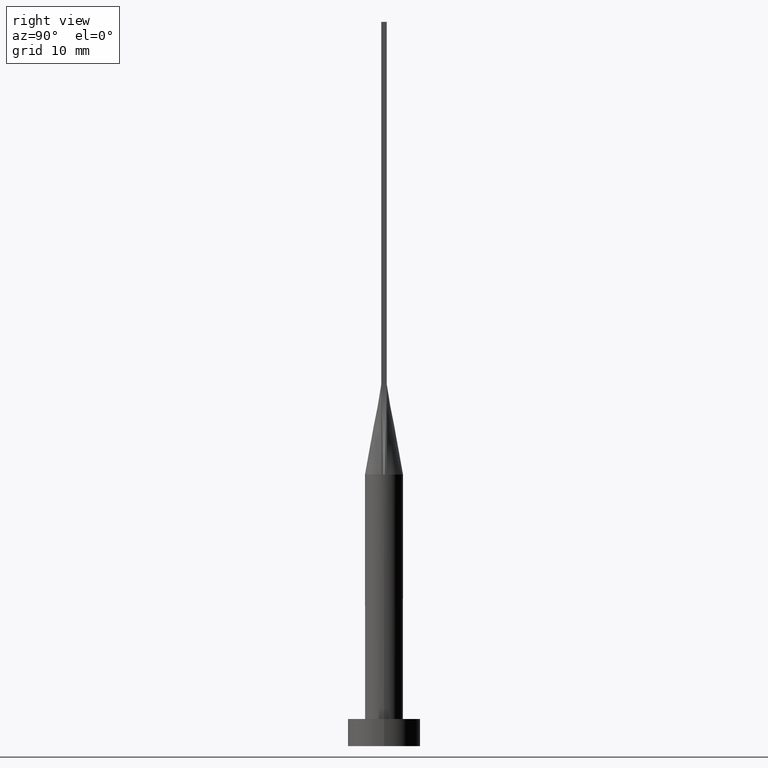
[diagram: clean part render]
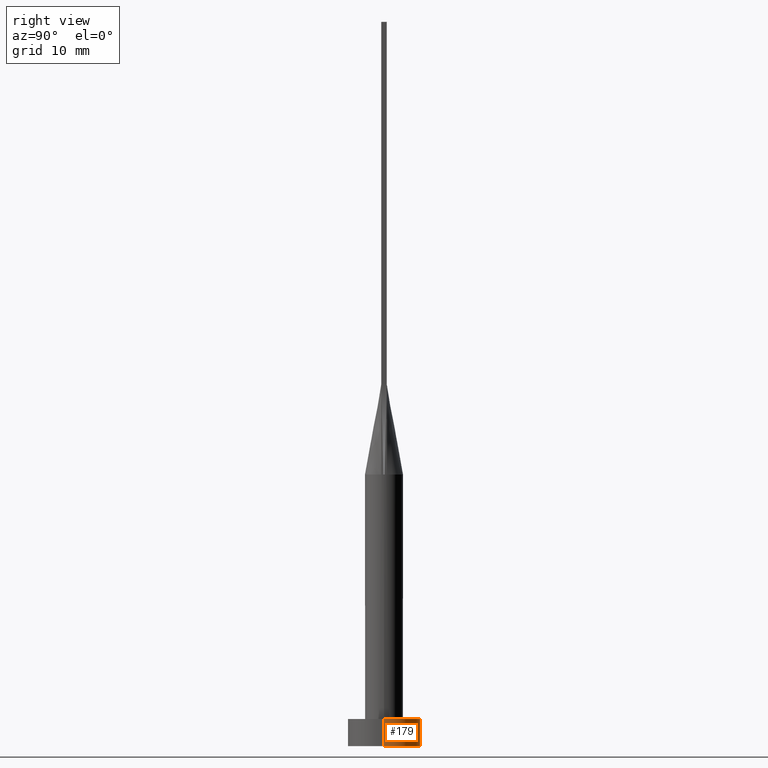
[diagram: same view with one face highlighted and labeled with its STEP entity id]
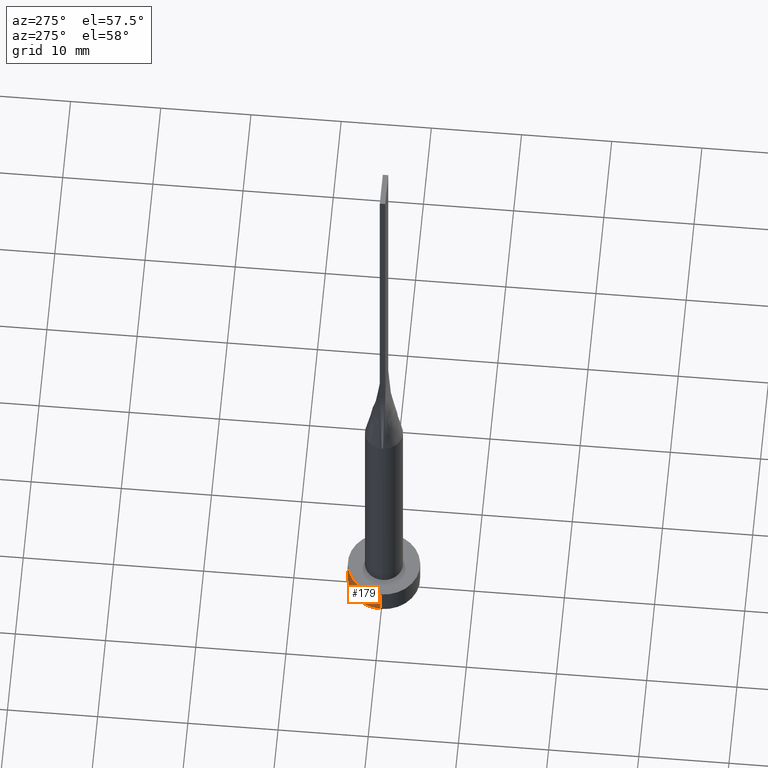
[diagram: same view with one face highlighted and labeled with its STEP entity id]
A machine part, right view. The second image highlights one B-rep face of the part: STEP entity #179.
A second angle (auxiliary view) of the same face is appended — the face is thin or edge-on in the first view.
In plain terms, the highlighted cylindrical surface (edge-blend (fillet) strip) has radius 4 mm, axis along (-0, -0, -1).
Its self-contained STEP definition (entity closure, byte-faithful):
#6 = LINE ( 'NONE', #216, #61 ) ;
#11 = CYLINDRICAL_SURFACE ( 'NONE', #329, 4.000000000000000000 ) ;
#29 = ORIENTED_EDGE ( 'NONE', *, *, #88, .T. ) ;
#61 = VECTOR ( 'NONE', #219, 1000.000000000000000 ) ;
#88 = EDGE_CURVE ( 'NONE', #538, #225, #6, .T. ) ;
#106 = CIRCLE ( 'NONE', #302, 4.000000000000000000 ) ;
#112 = DIRECTION ( 'NONE',  ( 1.000000000000000000, 0.000000000000000000, 0.000000000000000000 ) ) ;
#113 = DIRECTION ( 'NONE',  ( -1.000000000000000000, 0.000000000000000000, 0.000000000000000000 ) ) ;
#122 = ORIENTED_EDGE ( 'NONE', *, *, #562, .F. ) ;
#133 = VERTEX_POINT ( 'NONE', #405 ) ;
#142 = CARTESIAN_POINT ( 'NONE',  ( 0.000000000000000000, 0.000000000000000000, 0.000000000000000000 ) ) ;
#146 = CARTESIAN_POINT ( 'NONE',  ( -4.000000000000000000, 0.000000000000000000, 3.000000000000000000 ) ) ;
#151 = DIRECTION ( 'NONE',  ( 0.000000000000000000, 0.000000000000000000, 1.000000000000000000 ) ) ;
#179 = ADVANCED_FACE ( 'NONE', ( #236 ), #11, .T. ) ;
#180 = CARTESIAN_POINT ( 'NONE',  ( 4.000000000000000000, 4.898587196589412829E-16, 0.000000000000000000 ) ) ;
#185 = DIRECTION ( 'NONE',  ( 1.000000000000000000, 0.000000000000000000, 0.000000000000000000 ) ) ;
#211 = EDGE_CURVE ( 'NONE', #133, #436, #336, .T. ) ;
#216 = CARTESIAN_POINT ( 'NONE',  ( 4.000000000000000000, 4.898587196589412829E-16, 3.000000000000000000 ) ) ;
#219 = DIRECTION ( 'NONE',  ( -0.000000000000000000, -0.000000000000000000, -1.000000000000000000 ) ) ;
#225 = VERTEX_POINT ( 'NONE', #180 ) ;
#236 = FACE_OUTER_BOUND ( 'NONE', #574, .T. ) ;
#284 = CARTESIAN_POINT ( 'NONE',  ( 0.000000000000000000, 0.000000000000000000, 3.000000000000000000 ) ) ;
#291 = CIRCLE ( 'NONE', #316, 4.000000000000000000 ) ;
#302 = AXIS2_PLACEMENT_3D ( 'NONE', #514, #520, #112 ) ;
#316 = AXIS2_PLACEMENT_3D ( 'NONE', #142, #151, #185 ) ;
#329 = AXIS2_PLACEMENT_3D ( 'NONE', #284, #558, #113 ) ;
#336 = LINE ( 'NONE', #146, #581 ) ;
#396 = EDGE_CURVE ( 'NONE', #225, #436, #291, .T. ) ;
#405 = CARTESIAN_POINT ( 'NONE',  ( -4.000000000000000000, 0.000000000000000000, 3.000000000000000000 ) ) ;
#417 = DIRECTION ( 'NONE',  ( -0.000000000000000000, -0.000000000000000000, -1.000000000000000000 ) ) ;
#418 = CARTESIAN_POINT ( 'NONE',  ( -4.000000000000000000, 0.000000000000000000, 0.000000000000000000 ) ) ;
#421 = CARTESIAN_POINT ( 'NONE',  ( 4.000000000000000000, 4.898587196589412829E-16, 3.000000000000000000 ) ) ;
#436 = VERTEX_POINT ( 'NONE', #418 ) ;
#476 = ORIENTED_EDGE ( 'NONE', *, *, #211, .F. ) ;
#514 = CARTESIAN_POINT ( 'NONE',  ( 0.000000000000000000, 0.000000000000000000, 3.000000000000000000 ) ) ;
#520 = DIRECTION ( 'NONE',  ( 0.000000000000000000, 0.000000000000000000, 1.000000000000000000 ) ) ;
#531 = ORIENTED_EDGE ( 'NONE', *, *, #396, .T. ) ;
#538 = VERTEX_POINT ( 'NONE', #421 ) ;
#558 = DIRECTION ( 'NONE',  ( -0.000000000000000000, -0.000000000000000000, -1.000000000000000000 ) ) ;
#562 = EDGE_CURVE ( 'NONE', #538, #133, #106, .T. ) ;
#574 = EDGE_LOOP ( 'NONE', ( #122, #29, #531, #476 ) ) ;
#581 = VECTOR ( 'NONE', #417, 1000.000000000000000 ) ;